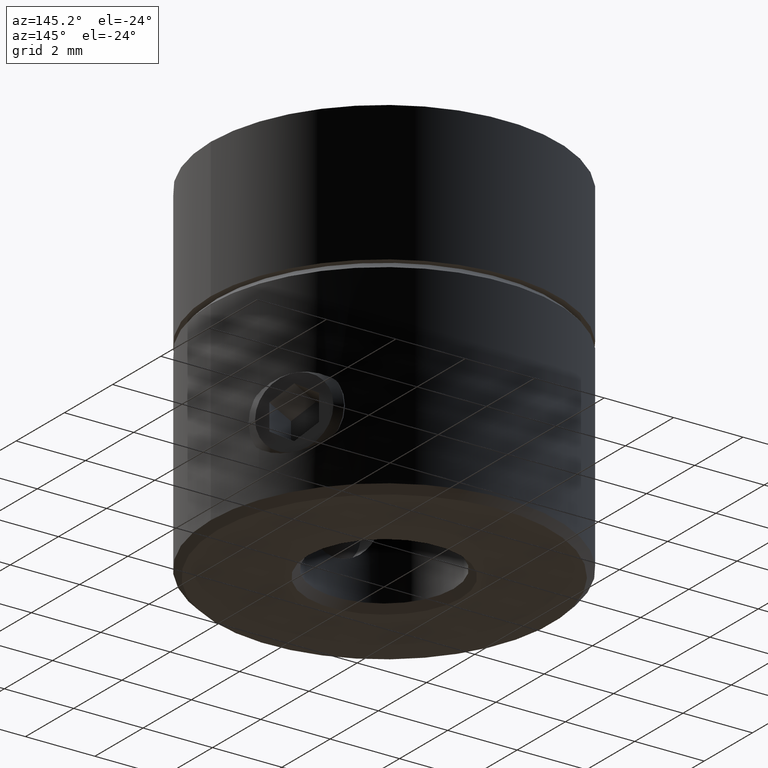
[diagram: clean part render]
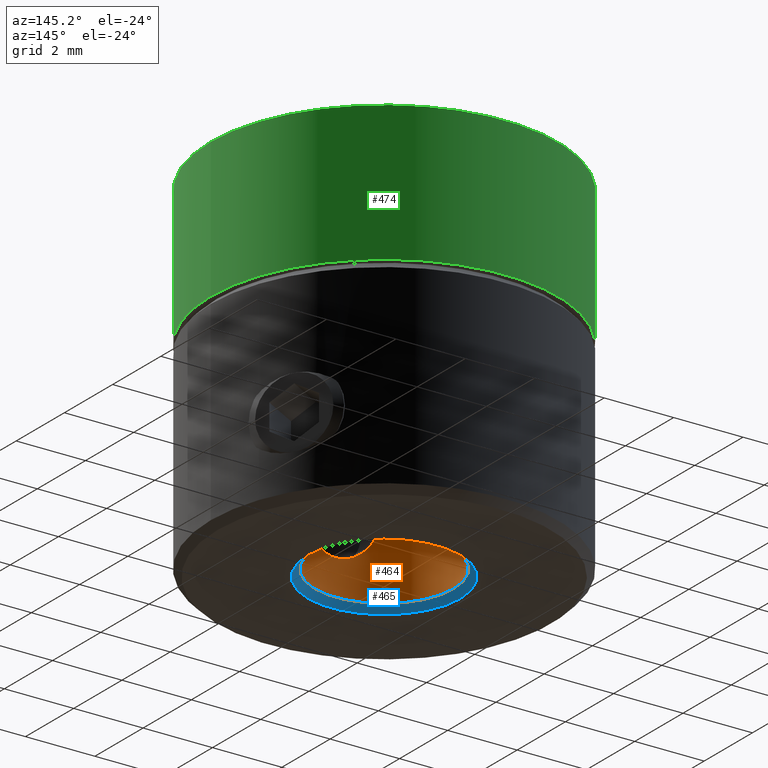
[diagram: same view with three faces highlighted in distinct colors, each labeled with its STEP entity id]
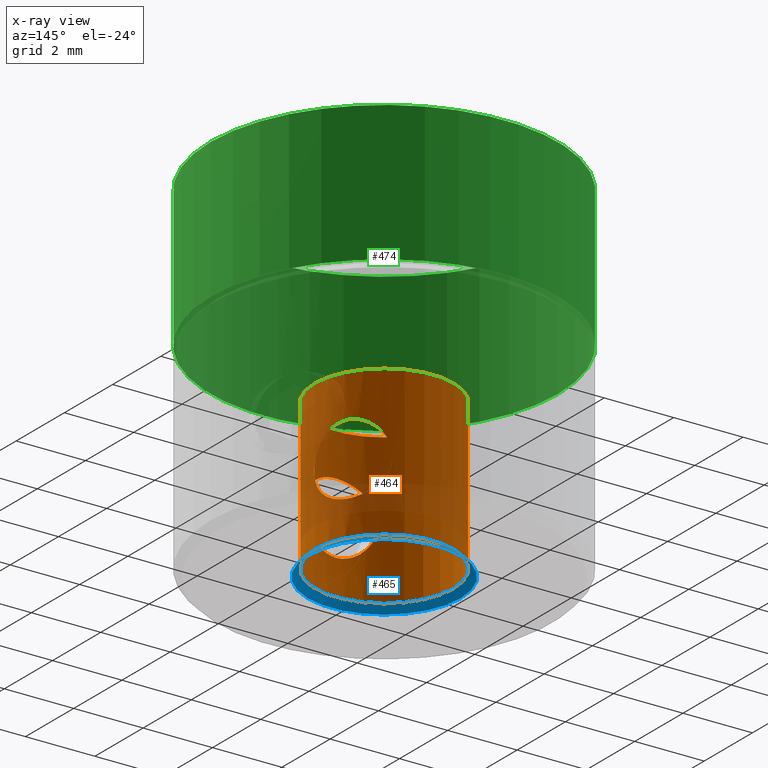
[diagram: x-ray of the same camera — body ghosted, the three highlighted faces saturated]
A machine part, auxiliary view with three faces highlighted in distinct colors.
The next image is the same camera in x-ray (body ghosted, the three faces saturated) — at least one of them is partly hidden behind the body in this view.
Their STEP definitions:

[orange] entity #464 — the highlighted cylindrical surface (bore or boss wall) has radius 2 mm, axis along (-0, 0, -1).
#464 = ADVANCED_FACE( '', ( #511, #512, #513, #514 ), #515, .F. );
#511 = FACE_OUTER_BOUND( '', #596, .T. );
#512 = FACE_BOUND( '', #597, .T. );
#513 = FACE_OUTER_BOUND( '', #598, .T. );
#514 = FACE_BOUND( '', #599, .T. );
#515 = CYLINDRICAL_SURFACE( '', #600, 2.00000000000000 );
#596 = EDGE_LOOP( '', ( #687 ) );
#597 = EDGE_LOOP( '', ( #688 ) );
#598 = EDGE_LOOP( '', ( #689 ) );
#599 = EDGE_LOOP( '', ( #690 ) );
#600 = AXIS2_PLACEMENT_3D( '', #691, #692, #693 );
#687 = ORIENTED_EDGE( '', *, *, #835, .T. );
#688 = ORIENTED_EDGE( '', *, *, #836, .F. );
#689 = ORIENTED_EDGE( '', *, *, #837, .T. );
#690 = ORIENTED_EDGE( '', *, *, #834, .F. );
#691 = CARTESIAN_POINT( '', ( 0.000000000000000, 0.000000000000000, -10.5000000001710 ) );
#692 = DIRECTION( '', ( -0.000000000000000, 0.000000000000000, -1.00000000000000 ) );
#693 = DIRECTION( '', ( 1.00000000000000, 0.000000000000000, 0.000000000000000 ) );
#834 = EDGE_CURVE( '', #879, #879, #880, .T. );
#835 = EDGE_CURVE( '', #881, #881, #882, .F. );
#836 = EDGE_CURVE( '', #883, #883, #884, .T. );
#837 = EDGE_CURVE( '', #885, #885, #886, .T. );
#879 = VERTEX_POINT( '', #1015 );
#880 = B_SPLINE_CURVE_WITH_KNOTS( '', 3, ( #1016, #1017, #1018, #1019, #1020, #1021, #1022, #1023, #1024, #1025, #1026, #1027, #1028, #1029, #1030, #1031, #1032, #1033, #1034, #1035, #1036, #1037, #1038, #1039, #1040, #1041, #1042, #1043, #1044, #1045, #1046, #1047, #1048, #1049, #1050, #1051 ), .UNSPECIFIED., .T., .F., ( 2, 2, 2, 2, 2, 2, 2, 2, 2, 2, 2, 2, 2, 2, 2, 2, 2, 2, 2, 2 ), ( -0.000407511637351884, 0.000000000000000, 0.000407511637351884, 0.000815023274703768, 0.00122253491205565, 0.00163004654940754, 0.00203755818675942, 0.00244506982411130, 0.00285258146146319, 0.00326009309881507, 0.00346384891749101, 0.00366760473616696, 0.00407511637351884, 0.00448262801087073, 0.00489013964822261, 0.00529765128557450, 0.00570516292292638, 0.00611267456027827, 0.00652018619763015, 0.00692769783498203 ), .UNSPECIFIED. );
#881 = VERTEX_POINT( '', #1052 );
#882 = CIRCLE( '', #1053, 2.00000000000000 );
#883 = VERTEX_POINT( '', #1054 );
#884 = B_SPLINE_CURVE_WITH_KNOTS( '', 3, ( #1055, #1056, #1057, #1058, #1059, #1060, #1061, #1062, #1063, #1064, #1065, #1066, #1067, #1068, #1069, #1070, #1071, #1072, #1073, #1074, #1075, #1076, #1077, #1078, #1079, #1080, #1081, #1082, #1083, #1084, #1085, #1086, #1087, #1088, #1089, #1090 ), .UNSPECIFIED., .T., .F., ( 2, 2, 2, 2, 2, 2, 2, 2, 2, 2, 2, 2, 2, 2, 2, 2, 2, 2, 2, 2 ), ( -0.000407511637351884, 0.000000000000000, 0.000407511637351885, 0.000815023274703770, 0.00122253491205566, 0.00163004654940754, 0.00203755818675943, 0.00244506982411131, 0.00285258146146320, 0.00326009309881508, 0.00346384891749102, 0.00366760473616696, 0.00407511637351885, 0.00448262801087073, 0.00489013964822262, 0.00529765128557450, 0.00570516292292638, 0.00611267456027827, 0.00652018619763015, 0.00692769783498203 ), .UNSPECIFIED. );
#885 = VERTEX_POINT( '', #1091 );
#886 = CIRCLE( '', #1092, 2.00000000000000 );
#1015 = CARTESIAN_POINT( '', ( 0.974789901128896, 1.74636326365883, -3.75000000000000 ) );
#1016 = CARTESIAN_POINT( '', ( 0.974789901128895, 1.74636326365883, -3.61196398581813 ) );
#1017 = CARTESIAN_POINT( '', ( 0.974789901128895, 1.74636326365883, -3.88803601418187 ) );
#1018 = CARTESIAN_POINT( '', ( 1.00385787583567, 1.73081057664708, -4.02291549158094 ) );
#1019 = CARTESIAN_POINT( '', ( 1.10350166884781, 1.66904761884159, -4.26943215326214 ) );
#1020 = CARTESIAN_POINT( '', ( 1.17360387786356, 1.62251053893770, -4.38100537715086 ) );
#1021 = CARTESIAN_POINT( '', ( 1.32874674067060, 1.49810500641897, -4.56677318877355 ) );
#1022 = CARTESIAN_POINT( '', ( 1.41520897654502, 1.41877975804405, -4.64269307899086 ) );
#1023 = CARTESIAN_POINT( '', ( 1.58147698056905, 1.23072458700529, -4.74637372130077 ) );
#1024 = CARTESIAN_POINT( '', ( 1.66244988772831, 1.12023650015175, -4.77469187332142 ) );
#1025 = CARTESIAN_POINT( '', ( 1.79935721820898, 0.883732452023433, -4.77530300049000 ) );
#1026 = CARTESIAN_POINT( '', ( 1.85505458536453, 0.758216176709257, -4.74771668640920 ) );
#1027 = CARTESIAN_POINT( '', ( 1.93604159583312, 0.517554078826103, -4.64365732759248 ) );
#1028 = CARTESIAN_POINT( '', ( 1.96146329586822, 0.403235376094114, -4.56795963032538 ) );
#1029 = CARTESIAN_POINT( '', ( 1.99183865386199, 0.206193614239725, -4.38230784828504 ) );
#1030 = CARTESIAN_POINT( '', ( 1.99713411164811, 0.121980606657251, -4.27051295960425 ) );
#1031 = CARTESIAN_POINT( '', ( 2.00084952433896, 0.00501091423915101, -4.02580754999626 ) );
#1032 = CARTESIAN_POINT( '', ( 1.99979710264178, -0.0284919206809593, -3.88913583530069 ) );
#1033 = CARTESIAN_POINT( '', ( 1.99978642525397, -0.0292286450178783, -3.68520199140443 ) );
#1034 = CARTESIAN_POINT( '', ( 1.99994515112660, -0.0213352086117885, -3.61588809721210 ) );
#1035 = CARTESIAN_POINT( '', ( 2.00003697137929, 0.00937612698733654, -3.48286235279765 ) );
#1036 = CARTESIAN_POINT( '', ( 1.99996054095043, 0.0320406287660267, -3.41840718306073 ) );
#1037 = CARTESIAN_POINT( '', ( 1.99724141688507, 0.120423385107692, -3.23129525311733 ) );
#1038 = CARTESIAN_POINT( '', ( 1.99206110987668, 0.204001846432341, -3.12024776148724 ) );
#1039 = CARTESIAN_POINT( '', ( 1.96192830567164, 0.400950797773686, -2.93371336099145 ) );
#1040 = CARTESIAN_POINT( '', ( 1.93642243910040, 0.515756766585729, -2.85758064560142 ) );
#1041 = CARTESIAN_POINT( '', ( 1.85679900096253, 0.753680552326438, -2.75379572625587 ) );
#1042 = CARTESIAN_POINT( '', ( 1.80118355137199, 0.879902236511841, -2.72534764838350 ) );
#1043 = CARTESIAN_POINT( '', ( 1.66551092353738, 1.11560006056346, -2.72465892534461 ) );
#1044 = CARTESIAN_POINT( '', ( 1.58453081243222, 1.22695525547843, -2.75210627805577 ) );
#1045 = CARTESIAN_POINT( '', ( 1.41645005978865, 1.41768343526261, -2.85615841191022 ) );
#1046 = CARTESIAN_POINT( '', ( 1.33010211464209, 1.49695950890450, -2.93177274621009 ) );
#1047 = CARTESIAN_POINT( '', ( 1.17366557089508, 1.62251919383732, -3.11875341752955 ) );
#1048 = CARTESIAN_POINT( '', ( 1.10373024753443, 1.66889464417531, -3.23023028557403 ) );
#1049 = CARTESIAN_POINT( '', ( 1.00418495282830, 1.73061907223764, -3.47604865891942 ) );
#1050 = CARTESIAN_POINT( '', ( 0.974789901128895, 1.74636326365883, -3.61196398581813 ) );
#1051 = CARTESIAN_POINT( '', ( 0.974789901128895, 1.74636326365883, -3.88803601418187 ) );
#1052 = CARTESIAN_POINT( '', ( 2.00000000000000, 0.000000000000000, -5.80000000000000 ) );
#1053 = AXIS2_PLACEMENT_3D( '', #1173, #1174, #1175 );
#1054 = CARTESIAN_POINT( '', ( 1.02500000000000, -1.71737444955956, -3.75000000000000 ) );
#1055 = CARTESIAN_POINT( '', ( 1.02500000000000, -1.71737444955956, -3.61196398581813 ) );
#1056 = CARTESIAN_POINT( '', ( 1.02500000000000, -1.71737444955956, -3.88803601418187 ) );
#1057 = CARTESIAN_POINT( '', ( 0.996996990597327, -1.73477171058631, -4.02291549158094 ) );
#1058 = CARTESIAN_POINT( '', ( 0.893686803618835, -1.79018428776152, -4.26943215326214 ) );
#1059 = CARTESIAN_POINT( '', ( 0.818333405696251, -1.82762604167863, -4.38100537715086 ) );
#1060 = CARTESIAN_POINT( '', ( 0.633023622760174, -1.89978093582600, -4.56677318877355 ) );
#1061 = CARTESIAN_POINT( '', ( 0.521094824568773, -1.93499680437379, -4.64269307899086 ) );
#1062 = CARTESIAN_POINT( '', ( 0.275100267124173, -1.98496153417575, -4.74637372130077 ) );
#1063 = CARTESIAN_POINT( '', ( 0.138928323513831, -1.99984208536718, -4.77469187332142 ) );
#1064 = CARTESIAN_POINT( '', ( -0.134343855503486, -2.00015528746360, -4.77530300048999 ) );
#1065 = CARTESIAN_POINT( '', ( -0.270892822091740, -1.98563248468712, -4.74771668640920 ) );
#1066 = CARTESIAN_POINT( '', ( -0.519805817820901, -1.93543824418790, -4.64365732759247 ) );
#1067 = CARTESIAN_POINT( '', ( -0.631519568532035, -1.90029473085969, -4.56795963032538 ) );
#1068 = CARTESIAN_POINT( '', ( -0.817350418901265, -1.82807968160414, -4.38230784828504 ) );
#1069 = CARTESIAN_POINT( '', ( -0.892928751689840, -1.79055917878036, -4.27051295960425 ) );
#1070 = CARTESIAN_POINT( '', ( -0.996085183142191, -1.73529197434713, -4.02580754999626 ) );
#1071 = CARTESIAN_POINT( '', ( -1.02457327843321, -1.71762913296182, -3.88913583530069 ) );
#1072 = CARTESIAN_POINT( '', ( -1.02520596173067, -1.71725152390427, -3.68520199140444 ) );
#1073 = CARTESIAN_POINT( '', ( -1.01844940821615, -1.72133570274525, -3.61588809721210 ) );
#1074 = CARTESIAN_POINT( '', ( -0.991898521529501, -1.73677088921622, -3.48286235279765 ) );
#1075 = CARTESIAN_POINT( '', ( -0.972232272010611, -1.74803694941256, -3.41840718306072 ) );
#1076 = CARTESIAN_POINT( '', ( -0.894330997729557, -1.78987349706674, -3.23129525311733 ) );
#1077 = CARTESIAN_POINT( '', ( -0.819359773509002, -1.82717645026040, -3.12024776148724 ) );
#1078 = CARTESIAN_POINT( '', ( -0.633730576296168, -1.89955515200224, -2.93371336099145 ) );
#1079 = CARTESIAN_POINT( '', ( -0.521552757513240, -1.93486940801204, -2.85758064560142 ) );
#1080 = CARTESIAN_POINT( '', ( -0.275692995828280, -1.98487538071833, -2.75379572625587 ) );
#1081 = CARTESIAN_POINT( '', ( -0.138574086019997, -1.99982183062274, -2.72534764838350 ) );
#1082 = CARTESIAN_POINT( '', ( 0.133382531142726, -2.00017480034559, -2.72465892534461 ) );
#1083 = CARTESIAN_POINT( '', ( 0.270309014335038, -1.98572156438471, -2.75210627805577 ) );
#1084 = CARTESIAN_POINT( '', ( 0.519524839567489, -1.93552345260026, -2.85615841191022 ) );
#1085 = CARTESIAN_POINT( '', ( 0.631353905826931, -1.90038197535971, -2.93177274621009 ) );
#1086 = CARTESIAN_POINT( '', ( 0.818310054543430, -1.82768379686097, -3.11875341752955 ) );
#1087 = CARTESIAN_POINT( '', ( 0.893440034328389, -1.79030575537776, -3.23023028557403 ) );
#1088 = CARTESIAN_POINT( '', ( 0.996667604417500, -1.73495921536621, -3.47604865891942 ) );
#1089 = CARTESIAN_POINT( '', ( 1.02500000000000, -1.71737444955956, -3.61196398581813 ) );
#1090 = CARTESIAN_POINT( '', ( 1.02500000000000, -1.71737444955956, -3.88803601418187 ) );
#1091 = CARTESIAN_POINT( '', ( 2.00000000000000, 0.000000000000000, -1.50000000000000 ) );
#1092 = AXIS2_PLACEMENT_3D( '', #1176, #1177, #1178 );
#1173 = CARTESIAN_POINT( '', ( 0.000000000000000, 0.000000000000000, -5.80000000000000 ) );
#1174 = DIRECTION( '', ( 0.000000000000000, 0.000000000000000, 1.00000000000000 ) );
#1175 = DIRECTION( '', ( 1.00000000000000, 0.000000000000000, -0.000000000000000 ) );
#1176 = CARTESIAN_POINT( '', ( 0.000000000000000, 0.000000000000000, -1.50000000000000 ) );
#1177 = DIRECTION( '', ( 0.000000000000000, 0.000000000000000, 1.00000000000000 ) );
#1178 = DIRECTION( '', ( 1.00000000000000, 0.000000000000000, 0.000000000000000 ) );

[blue] entity #465 — the highlighted conical surface has half-angle 45 deg.
#465 = ADVANCED_FACE( '', ( #516, #517 ), #518, .F. );
#516 = FACE_BOUND( '', #601, .T. );
#517 = FACE_OUTER_BOUND( '', #602, .T. );
#518 = CONICAL_SURFACE( '', #603, 2.20000000000000, 0.785398163397449 );
#601 = EDGE_LOOP( '', ( #694 ) );
#602 = EDGE_LOOP( '', ( #695 ) );
#603 = AXIS2_PLACEMENT_3D( '', #696, #697, #698 );
#694 = ORIENTED_EDGE( '', *, *, #835, .F. );
#695 = ORIENTED_EDGE( '', *, *, #838, .F. );
#696 = CARTESIAN_POINT( '', ( 0.000000000000000, 0.000000000000000, -6.00000000000000 ) );
#697 = DIRECTION( '', ( -0.000000000000000, -0.000000000000000, -1.00000000000000 ) );
#698 = DIRECTION( '', ( -1.00000000000000, 0.000000000000000, 0.000000000000000 ) );
#835 = EDGE_CURVE( '', #881, #881, #882, .F. );
#838 = EDGE_CURVE( '', #887, #887, #888, .T. );
#881 = VERTEX_POINT( '', #1052 );
#882 = CIRCLE( '', #1053, 2.00000000000000 );
#887 = VERTEX_POINT( '', #1093 );
#888 = CIRCLE( '', #1094, 2.20000000000000 );
#1052 = CARTESIAN_POINT( '', ( 2.00000000000000, 0.000000000000000, -5.80000000000000 ) );
#1053 = AXIS2_PLACEMENT_3D( '', #1173, #1174, #1175 );
#1093 = CARTESIAN_POINT( '', ( 2.20000000000000, 0.000000000000000, -6.00000000000000 ) );
#1094 = AXIS2_PLACEMENT_3D( '', #1179, #1180, #1181 );
#1173 = CARTESIAN_POINT( '', ( 0.000000000000000, 0.000000000000000, -5.80000000000000 ) );
#1174 = DIRECTION( '', ( 0.000000000000000, 0.000000000000000, 1.00000000000000 ) );
#1175 = DIRECTION( '', ( 1.00000000000000, 0.000000000000000, -0.000000000000000 ) );
#1179 = CARTESIAN_POINT( '', ( 0.000000000000000, 0.000000000000000, -6.00000000000000 ) );
#1180 = DIRECTION( '', ( 0.000000000000000, 0.000000000000000, 1.00000000000000 ) );
#1181 = DIRECTION( '', ( 1.00000000000000, 0.000000000000000, -0.000000000000000 ) );

[green] entity #474 — the highlighted cylindrical surface (bore or boss wall) has radius 5 mm, axis along (0, -0, 1).
#474 = ADVANCED_FACE( '', ( #541, #542 ), #543, .T. );
#541 = FACE_OUTER_BOUND( '', #628, .T. );
#542 = FACE_OUTER_BOUND( '', #629, .T. );
#543 = CYLINDRICAL_SURFACE( '', #630, 5.00000000000000 );
#628 = EDGE_LOOP( '', ( #734 ) );
#629 = EDGE_LOOP( '', ( #735 ) );
#630 = AXIS2_PLACEMENT_3D( '', #736, #737, #738 );
#734 = ORIENTED_EDGE( '', *, *, #842, .F. );
#735 = ORIENTED_EDGE( '', *, *, #843, .T. );
#736 = CARTESIAN_POINT( '', ( 0.000000000000000, 0.000000000000000, 4.00000000000000 ) );
#737 = DIRECTION( '', ( 0.000000000000000, -0.000000000000000, 1.00000000000000 ) );
#738 = DIRECTION( '', ( -1.00000000000000, 0.000000000000000, 0.000000000000000 ) );
#842 = EDGE_CURVE( '', #895, #895, #896, .T. );
#843 = EDGE_CURVE( '', #897, #897, #898, .T. );
#895 = VERTEX_POINT( '', #1101 );
#896 = CIRCLE( '', #1102, 5.00000000000000 );
#897 = VERTEX_POINT( '', #1103 );
#898 = CIRCLE( '', #1104, 5.00000000000000 );
#1101 = CARTESIAN_POINT( '', ( 5.00000000000000, 0.000000000000000, 4.00000000000000 ) );
#1102 = AXIS2_PLACEMENT_3D( '', #1191, #1192, #1193 );
#1103 = CARTESIAN_POINT( '', ( 5.00000000000000, 0.000000000000000, 0.000000000000000 ) );
#1104 = AXIS2_PLACEMENT_3D( '', #1194, #1195, #1196 );
#1191 = CARTESIAN_POINT( '', ( 0.000000000000000, 0.000000000000000, 4.00000000000000 ) );
#1192 = DIRECTION( '', ( 0.000000000000000, 0.000000000000000, 1.00000000000000 ) );
#1193 = DIRECTION( '', ( 1.00000000000000, 0.000000000000000, 0.000000000000000 ) );
#1194 = CARTESIAN_POINT( '', ( 0.000000000000000, 0.000000000000000, 0.000000000000000 ) );
#1195 = DIRECTION( '', ( 0.000000000000000, 0.000000000000000, 1.00000000000000 ) );
#1196 = DIRECTION( '', ( 1.00000000000000, 0.000000000000000, 0.000000000000000 ) );